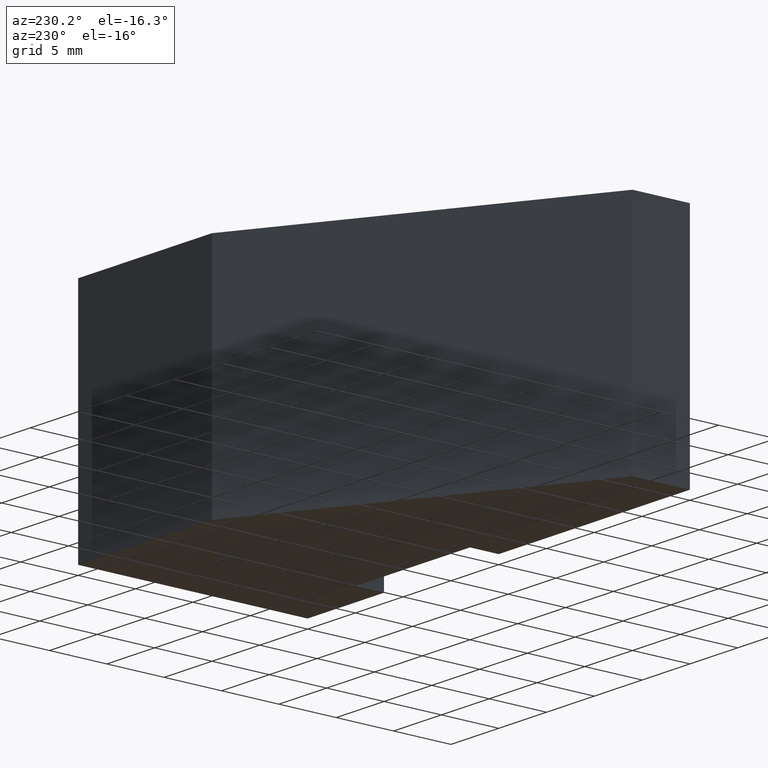
[diagram: clean part render]
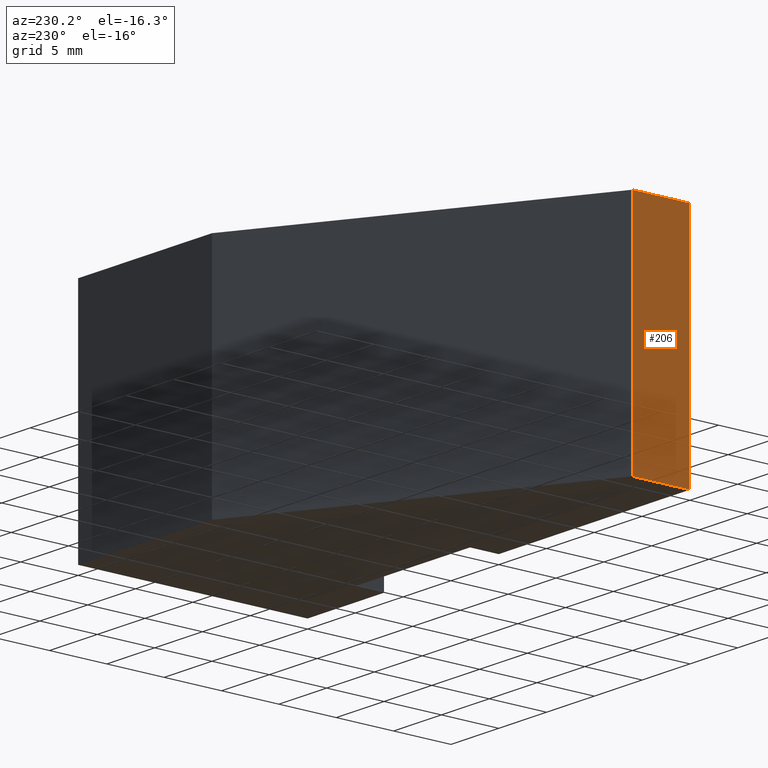
[diagram: same view with one face highlighted and labeled with its STEP entity id]
A machine part, auxiliary view. The second image highlights one B-rep face of the part: STEP entity #206.
In plain terms, the highlighted planar face has unit normal (-1, -0, 0).
Its self-contained STEP definition (entity closure, byte-faithful):
#20=FACE_OUTER_BOUND('',#31,.T.);
#31=EDGE_LOOP('',(#161,#162,#163,#164));
#43=LINE('',#313,#70);
#54=LINE('',#334,#81);
#55=LINE('',#337,#82);
#56=LINE('',#338,#83);
#70=VECTOR('',#256,10.);
#81=VECTOR('',#275,10.);
#82=VECTOR('',#278,10.);
#83=VECTOR('',#279,10.);
#97=VERTEX_POINT('',#310);
#98=VERTEX_POINT('',#312);
#104=VERTEX_POINT('',#332);
#105=VERTEX_POINT('',#336);
#115=EDGE_CURVE('',#98,#97,#43,.T.);
#126=EDGE_CURVE('',#104,#97,#54,.T.);
#127=EDGE_CURVE('',#104,#105,#55,.T.);
#128=EDGE_CURVE('',#105,#98,#56,.T.);
#161=ORIENTED_EDGE('',*,*,#127,.T.);
#162=ORIENTED_EDGE('',*,*,#128,.T.);
#163=ORIENTED_EDGE('',*,*,#115,.T.);
#164=ORIENTED_EDGE('',*,*,#126,.F.);
#195=PLANE('',#240);
#206=ADVANCED_FACE('',(#20),#195,.T.);
#240=AXIS2_PLACEMENT_3D('',#335,#276,#277);
#256=DIRECTION('',(8.88178419700125E-16,-1.,0.));
#275=DIRECTION('',(0.,0.,-1.));
#276=DIRECTION('center_axis',(-1.,-8.88178419700125E-16,0.));
#277=DIRECTION('ref_axis',(0.,0.,1.));
#278=DIRECTION('',(-8.88178419700125E-16,1.,0.));
#279=DIRECTION('',(0.,0.,-1.));
#310=CARTESIAN_POINT('',(-40.,-1.60118018923355E-15,-10.));
#312=CARTESIAN_POINT('',(-40.,5.,-10.));
#313=CARTESIAN_POINT('',(-40.,-1.60118018923355E-15,-10.));
#332=CARTESIAN_POINT('',(-40.,-1.60118018923355E-15,10.));
#334=CARTESIAN_POINT('',(-40.,-1.60118018923355E-15,0.));
#335=CARTESIAN_POINT('Origin',(-40.,-1.60118018923355E-15,0.));
#336=CARTESIAN_POINT('',(-40.,5.,10.));
#337=CARTESIAN_POINT('',(-40.,-1.60118018923355E-15,10.));
#338=CARTESIAN_POINT('',(-40.,5.,0.));